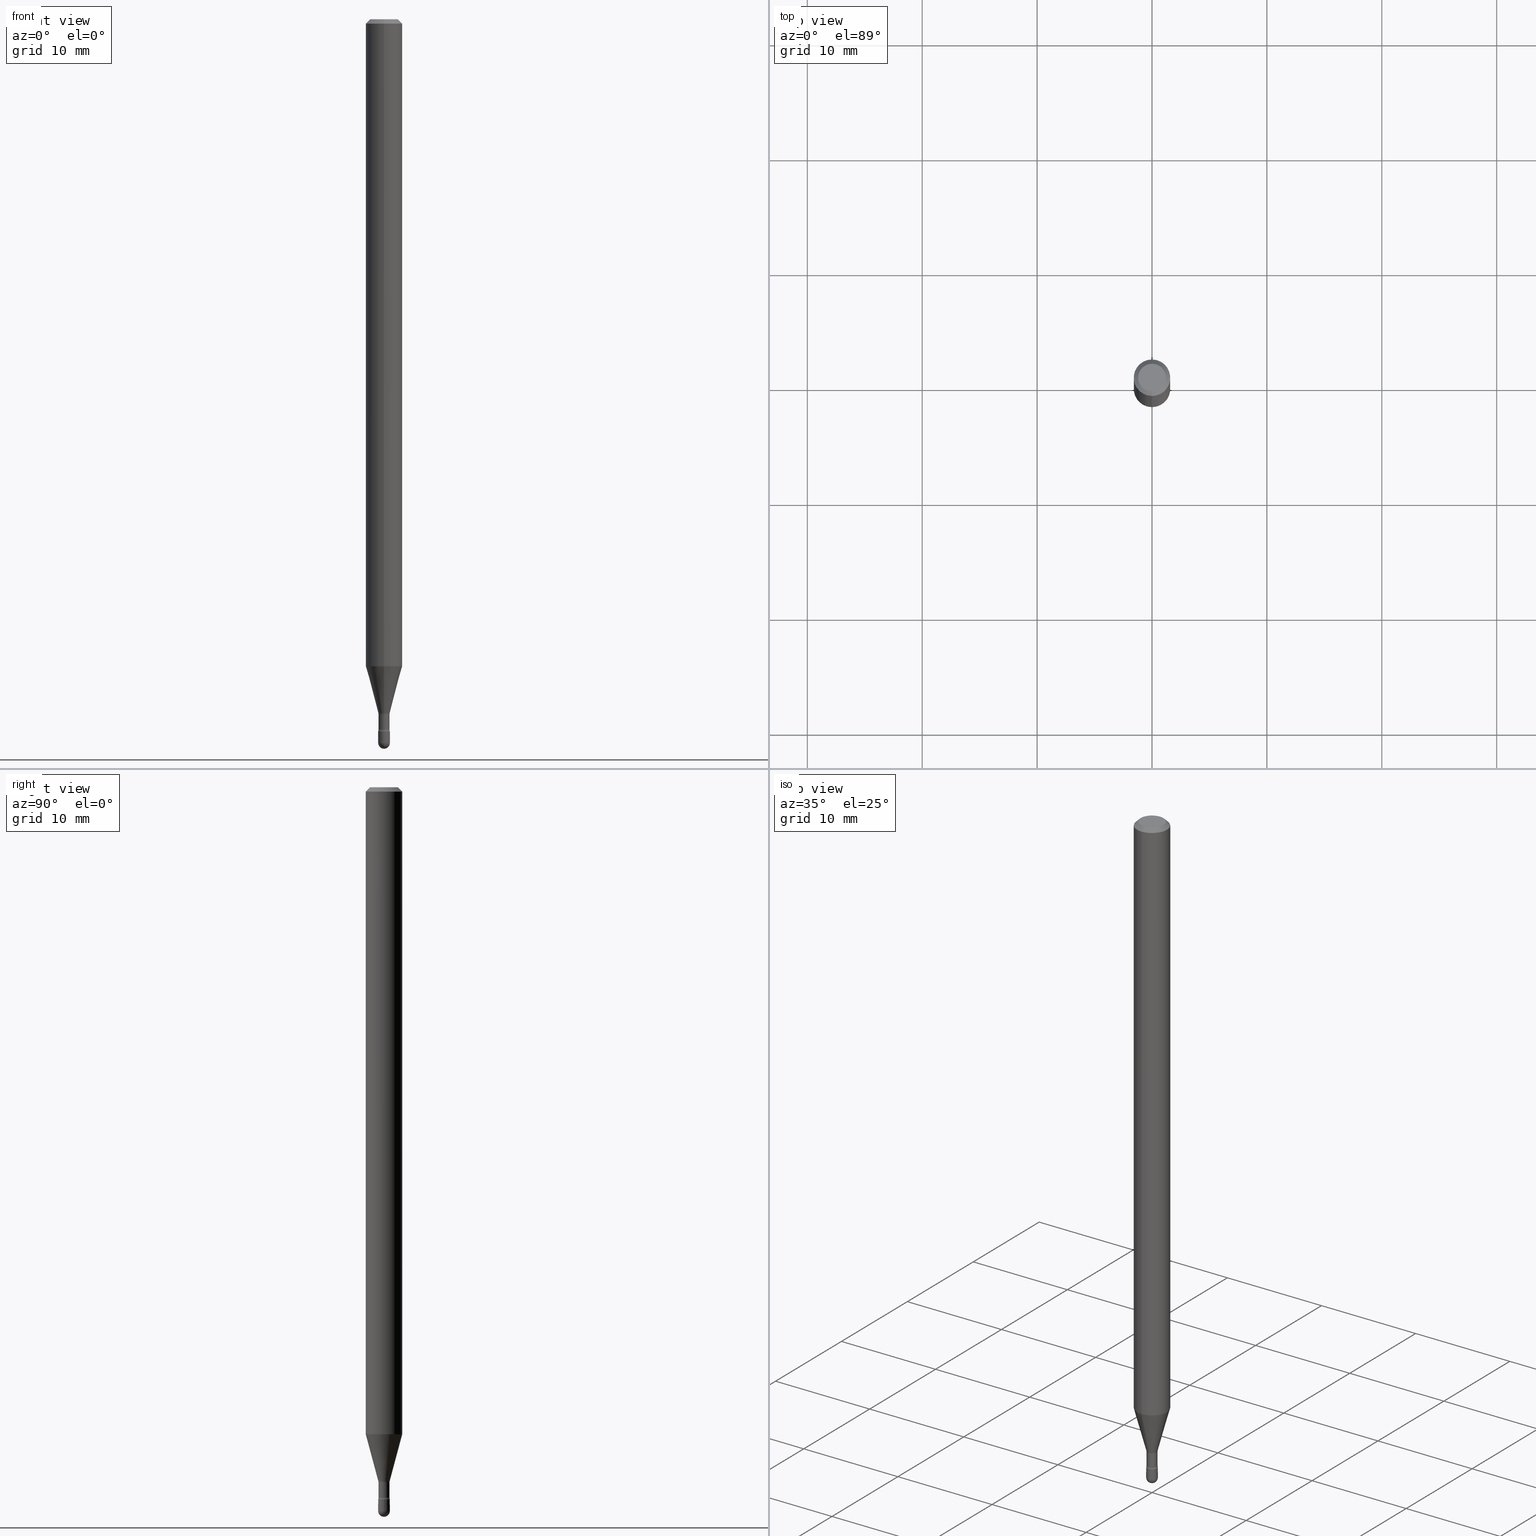
[diagram: canonical four-view strip — front | top / right | iso, engineering-drawing reading convention]
A machine part, canonical four-view strip (front | top / right | iso — engineering-drawing reading convention). The complete STEP part file that produces these views, byte-faithful:
ISO-10303-21;
HEADER;
FILE_DESCRIPTION (( 'STEP AP203' ),
    '1' );
FILE_NAME ('03812.STEP',
    '2024-04-09T20:34:02',
    ( '' ),
    ( '' ),
    'SwSTEP 2.0',
    'SolidWorks 2023',
    '' );
FILE_SCHEMA (( 'CONFIG_CONTROL_DESIGN' ));
ENDSEC;

DATA;
#1 = DIRECTION ( 'NONE',  ( 2.445423680447958706E-29, -3.491545961467181142E-15, -1.000000000000000000 ) ) ;
#2 = EDGE_CURVE ( 'NONE', #200, #380, #477, .T. ) ;
#3 = PRODUCT ( '03812', '03812', '', ( #102 ) ) ;
#4 = CARTESIAN_POINT ( 'NONE',  ( 6.064762639339139522E-29, -8.658873720331001644E-15, -2.480000000000000426 ) ) ;
#5 = CIRCLE ( 'NONE', #548, 0.04749999999999999362 ) ;
#6 = LOCAL_TIME ( 16, 34, 2.000000000000000000, #500 ) ;
#7 = CARTESIAN_POINT ( 'NONE',  ( -2.360241385057363024E-16, -0.03380000000000851074, -2.434121224617320500 ) ) ;
#8 = DIRECTION ( 'NONE',  ( -2.445468806185136597E-29, 3.491481338843145583E-15, 1.000000000000000000 ) ) ;
#9 = LINE ( 'NONE', #369, #323 ) ;
#10 = ORIENTED_EDGE ( 'NONE', *, *, #516, .T. ) ;
#11 = EDGE_CURVE ( 'NONE', #347, #132, #42, .T. ) ;
#12 = DIRECTION ( 'NONE',  ( 6.982962677686265133E-15, 1.000000000000000000, 0.000000000000000000 ) ) ;
#13 = ORIENTED_EDGE ( 'NONE', *, *, #395, .T. ) ;
#14 = AXIS2_PLACEMENT_3D ( 'NONE', #418, #373, #16 ) ;
#15 = AXIS2_PLACEMENT_3D ( 'NONE', #4, #56, #176 ) ;
#16 = DIRECTION ( 'NONE',  ( -6.982962677686265922E-15, -1.000000000000000000, 0.000000000000000000 ) ) ;
#17 = PERSON_AND_ORGANIZATION ( #273, #421 ) ;
#18 = FACE_OUTER_BOUND ( 'NONE', #566, .T. ) ;
#19 = DIRECTION ( 'NONE',  ( -6.982962677686265922E-15, -1.000000000000000000, 3.491545961467180748E-15 ) ) ;
#20 = DIRECTION ( 'NONE',  ( -6.982962677686265922E-15, -1.000000000000000000, 3.491545961467180748E-15 ) ) ;
#21 = PERSON_AND_ORGANIZATION ( #273, #421 ) ;
#22 = CARTESIAN_POINT ( 'NONE',  ( -1.169113584055446105E-44, 1.669184350826100908E-30, 4.780733988912460139E-16 ) ) ;
#23 = APPROVAL_ROLE ( '' ) ;
#24 = UNCERTAINTY_MEASURE_WITH_UNIT (LENGTH_MEASURE( 1.000000000000000082E-05 ), #179, 'distance_accuracy_value', 'NONE');
#25 = DIRECTION ( 'NONE',  ( -2.445423680447958986E-29, 3.491545961467181142E-15, 1.000000000000000000 ) ) ;
#26 = ORIENTED_EDGE ( 'NONE', *, *, #326, .F. ) ;
#27 = AXIS2_PLACEMENT_3D ( 'NONE', #549, #187, #423 ) ;
#28 = DIRECTION ( 'NONE',  ( 6.982962677686265922E-15, 1.000000000000000000, -3.483106191921935554E-15 ) ) ;
#29 = PERSON_AND_ORGANIZATION_ROLE ( 'classification_officer' ) ;
#30 = CC_DESIGN_APPROVAL ( #525, ( #88 ) ) ;
#31 = ORIENTED_EDGE ( 'NONE', *, *, #322, .F. ) ;
#32 = ORIENTED_EDGE ( 'NONE', *, *, #143, .T. ) ;
#33 = LINE ( 'NONE', #304, #147 ) ;
#34 = VERTEX_POINT ( 'NONE', #235 ) ;
#35 = ORIENTED_EDGE ( 'NONE', *, *, #446, .T. ) ;
#36 = CARTESIAN_POINT ( 'NONE',  ( 3.668135520671958886E-31, -5.237318942200801172E-17, -0.01500000000000008271 ) ) ;
#37 = ADVANCED_FACE ( 'NONE', ( #289 ), #422, .T. ) ;
#38 = VERTEX_POINT ( 'NONE', #464 ) ;
#39 = CARTESIAN_POINT ( 'NONE',  ( -4.287811248607203282E-16, -0.06250000000000005551, -0.01499999999999986587 ) ) ;
#40 = DIRECTION ( 'NONE',  ( 1.000000000000000000, -6.982962677686265922E-15, 4.883557194083112340E-29 ) ) ;
#41 = DIMENSIONAL_EXPONENTS ( 1.000000000000000000, 0.000000000000000000, 0.000000000000000000, 0.000000000000000000, 0.000000000000000000, 0.000000000000000000, 0.000000000000000000 ) ;
#42 = CIRCLE ( 'NONE', #52, 0.01931111260566397564 ) ;
#43 = AXIS2_PLACEMENT_3D ( 'NONE', #207, #174, #250 ) ;
#44 = ORIENTED_EDGE ( 'NONE', *, *, #541, .T. ) ;
#45 =( GEOMETRIC_REPRESENTATION_CONTEXT ( 3 ) GLOBAL_UNCERTAINTY_ASSIGNED_CONTEXT ( ( #24 ) ) GLOBAL_UNIT_ASSIGNED_CONTEXT ( ( #179, #314, #403 ) ) REPRESENTATION_CONTEXT ( 'NONE', 'WORKASPACE' ) );
#46 = DIRECTION ( 'NONE',  ( -7.105427357601000281E-15, -1.000000000000000000, 0.000000000000000000 ) ) ;
#47 = EDGE_CURVE ( 'NONE', #347, #432, #553, .T. ) ;
#48 = DIRECTION ( 'NONE',  ( -6.982962677686265922E-15, -1.000000000000000000, 0.000000000000000000 ) ) ;
#49 = ORIENTED_EDGE ( 'NONE', *, *, #357, .T. ) ;
#50 = PRODUCT_DEFINITION_SHAPE ( 'NONE', 'NONE',  #88 ) ;
#51 = EDGE_LOOP ( 'NONE', ( #31, #35, #122, #240 ) ) ;
#52 = AXIS2_PLACEMENT_3D ( 'NONE', #520, #135, #189 ) ;
#53 = PERSON_AND_ORGANIZATION_ROLE ( 'design_owner' ) ;
#54 = EDGE_CURVE ( 'NONE', #231, #34, #447, .T. ) ;
#55 = CARTESIAN_POINT ( 'NONE',  ( 0.000000000000000000, 0.000000000000000000, 0.000000000000000000 ) ) ;
#56 = DIRECTION ( 'NONE',  ( -2.445468806185136597E-29, 3.491481338843145583E-15, 1.000000000000000000 ) ) ;
#57 = CARTESIAN_POINT ( 'NONE',  ( 5.824937551493997987E-29, -8.316774449485916344E-15, -2.381974787463811083 ) ) ;
#58 = CONICAL_SURFACE ( 'NONE', #180, 0.06250000000000000000, 0.7853981633974483900 ) ;
#59 = AXIS2_PLACEMENT_3D ( 'NONE', #407, #96, #491 ) ;
#60 = AXIS2_PLACEMENT_3D ( 'NONE', #390, #428, #217 ) ;
#61 = CARTESIAN_POINT ( 'NONE',  ( 2.023224718894761242E-45, -2.889352424493738895E-31, -8.274396249690367506E-17 ) ) ;
#62 = ADVANCED_FACE ( 'NONE', ( #338 ), #114, .T. ) ;
#63 = CARTESIAN_POINT ( 'NONE',  ( 2.023224718894761242E-45, -2.889352424493738895E-31, -8.274396249690367506E-17 ) ) ;
#64 = FACE_OUTER_BOUND ( 'NONE', #430, .T. ) ;
#65 = VERTEX_POINT ( 'NONE', #544 ) ;
#66 = FACE_OUTER_BOUND ( 'NONE', #427, .T. ) ;
#67 = APPROVAL_STATUS ( 'not_yet_approved' ) ;
#68 = DIRECTION ( 'NONE',  ( -2.445423680447958986E-29, 3.491545961467181142E-15, 1.000000000000000000 ) ) ;
#69 = CIRCLE ( 'NONE', #225, 0.02000000000000000042 ) ;
#70 = CARTESIAN_POINT ( 'NONE',  ( 5.952567525274821981E-29, -8.498688832233398804E-15, -2.434121224617320500 ) ) ;
#71 = DIRECTION ( 'NONE',  ( 6.982962677686265922E-15, 1.000000000000000000, -3.483106191921935554E-15 ) ) ;
#72 = EDGE_LOOP ( 'NONE', ( #81, #128, #109, #243 ) ) ;
#73 = DIRECTION ( 'NONE',  ( -6.982962677686265922E-15, -1.000000000000000000, 3.491545961467181142E-15 ) ) ;
#74 = DATE_AND_TIME ( #507, #6 ) ;
#75 = DIRECTION ( 'NONE',  ( -1.807323732225327378E-15, -0.2588190451025177974, 0.9659258262890690894 ) ) ;
#76 = EDGE_CURVE ( 'NONE', #258, #252, #276, .T. ) ;
#77 = ORIENTED_EDGE ( 'NONE', *, *, #262, .F. ) ;
#78 = CARTESIAN_POINT ( 'NONE',  ( -1.348487785898901629E-16, -0.01931111260567227803, -2.378092501787273161 ) ) ;
#79 = DIRECTION ( 'NONE',  ( 1.000000000000000000, -6.982962677686265922E-15, 4.876176775795935793E-29 ) ) ;
#80 = ORIENTED_EDGE ( 'NONE', *, *, #76, .T. ) ;
#81 = ORIENTED_EDGE ( 'NONE', *, *, #233, .F. ) ;
#82 = AXIS2_PLACEMENT_3D ( 'NONE', #118, #484, #307 ) ;
#83 = CARTESIAN_POINT ( 'NONE',  ( 6.064762639339139522E-29, -8.658873720331001644E-15, -2.480000000000000426 ) ) ;
#84 = APPROVAL_PERSON_ORGANIZATION ( #333, #411, #23 ) ;
#85 = ORIENTED_EDGE ( 'NONE', *, *, #318, .T. ) ;
#86 = EDGE_CURVE ( 'NONE', #339, #301, #353, .T. ) ;
#87 = ORIENTED_EDGE ( 'NONE', *, *, #11, .T. ) ;
#88 = PRODUCT_DEFINITION ( 'UNKNOWN', '', #171, #275 ) ;
#89 = PLANE ( 'NONE',  #266 ) ;
#90 = ORIENTED_EDGE ( 'NONE', *, *, #11, .F. ) ;
#91 = DIRECTION ( 'NONE',  ( 1.000000000000000000, -7.105427357601001070E-15, 4.926316299940978661E-29 ) ) ;
#92 = ORIENTED_EDGE ( 'NONE', *, *, #76, .F. ) ;
#93 = LINE ( 'NONE', #384, #442 ) ;
#94 = AXIS2_PLACEMENT_3D ( 'NONE', #415, #108, #12 ) ;
#95 = CIRCLE ( 'NONE', #324, 0.02000000000000000042 ) ;
#96 = DIRECTION ( 'NONE',  ( -2.445468806185136597E-29, 3.491481338843145583E-15, 1.000000000000000000 ) ) ;
#97 = ORIENTED_EDGE ( 'NONE', *, *, #505, .F. ) ;
#98 = ADVANCED_FACE ( 'NONE', ( #330 ), #468, .T. ) ;
#99 = CIRCLE ( 'NONE', #236, 0.01879999999999999727 ) ;
#100 = CIRCLE ( 'NONE', #460, 0.01500000000000001506 ) ;
#101 = APPROVAL_ROLE ( '' ) ;
#102 = MECHANICAL_CONTEXT ( 'NONE', #254, 'mechanical' ) ;
#103 = DIRECTION ( 'NONE',  ( -6.982962677686265922E-15, -1.000000000000000000, 3.491545961467181142E-15 ) ) ;
#104 = EDGE_CURVE ( 'NONE', #432, #380, #9, .T. ) ;
#105 = VECTOR ( 'NONE', #425, 39.37007874015748143 ) ;
#106 = ORIENTED_EDGE ( 'NONE', *, *, #351, .T. ) ;
#107 = COORDINATED_UNIVERSAL_TIME_OFFSET ( 5, 0, .BEHIND. ) ;
#108 = DIRECTION ( 'NONE',  ( -1.000000000000000000, 6.982962677686265133E-15, -4.883557194083112340E-29 ) ) ;
#109 = ORIENTED_EDGE ( 'NONE', *, *, #481, .T. ) ;
#110 = DIRECTION ( 'NONE',  ( 1.000000000000000000, -7.105427357601001070E-15, 4.926316299940978661E-29 ) ) ;
#111 = CARTESIAN_POINT ( 'NONE',  ( -1.169113584055446105E-44, 1.669184350826100908E-30, 4.780733988912460139E-16 ) ) ;
#112 = CARTESIAN_POINT ( 'NONE',  ( -3.773273898774340269E-16, -0.04749999999999999362, 8.310447067278742425E-17 ) ) ;
#113 = PERSON_AND_ORGANIZATION_ROLE ( 'design_supplier' ) ;
#114 = SPHERICAL_SURFACE ( 'NONE', #94, 0.01999999999999989286 ) ;
#115 = AXIS2_PLACEMENT_3D ( 'NONE', #506, #306, #444 ) ;
#116 = CC_DESIGN_SECURITY_CLASSIFICATION ( #354, ( #171 ) ) ;
#117 = MANIFOLD_SOLID_BREP ( 'Body-Move/Copy2[1]', #283 ) ;
#118 = CARTESIAN_POINT ( 'NONE',  ( 6.064762639339139522E-29, -8.658873720331001644E-15, -2.480000000000000426 ) ) ;
#119 = CARTESIAN_POINT ( 'NONE',  ( 6.064762639339139522E-29, -8.658873720331001644E-15, -2.480000000000000426 ) ) ;
#120 = APPROVAL_DATE_TIME ( #188, #411 ) ;
#121 = CARTESIAN_POINT ( 'NONE',  ( 2.906514588320867785E-16, 0.01931111260565567325, -2.378092501787273161 ) ) ;
#122 = ORIENTED_EDGE ( 'NONE', *, *, #104, .T. ) ;
#123 = VERTEX_POINT ( 'NONE', #540 ) ;
#124 = CARTESIAN_POINT ( 'NONE',  ( 1.372137078140565094E-16, 0.01931111260565567325, -2.378092501787273161 ) ) ;
#125 = DIRECTION ( 'NONE',  ( -6.982962677686265133E-15, -1.000000000000000000, 0.000000000000000000 ) ) ;
#126 = ORIENTED_EDGE ( 'NONE', *, *, #498, .F. ) ;
#127 = ADVANCED_FACE ( 'NONE', ( #18 ), #201, .T. ) ;
#128 = ORIENTED_EDGE ( 'NONE', *, *, #2, .T. ) ;
#129 = AXIS2_PLACEMENT_3D ( 'NONE', #497, #334, #79 ) ;
#130 = CARTESIAN_POINT ( 'NONE',  ( -0.02000000000000000042, -8.446935546402118183E-15, -2.440000000000000391 ) ) ;
#131 = CIRCLE ( 'NONE', #203, 0.06250000000000000000 ) ;
#132 = VERTEX_POINT ( 'NONE', #121 ) ;
#133 = ORIENTED_EDGE ( 'NONE', *, *, #47, .T. ) ;
#134 = DIRECTION ( 'NONE',  ( -2.445423680447958986E-29, 3.491545961467181142E-15, 1.000000000000000000 ) ) ;
#135 = DIRECTION ( 'NONE',  ( -2.445423680447958986E-29, 3.491545961467181142E-15, 1.000000000000000000 ) ) ;
#136 = CARTESIAN_POINT ( 'NONE',  ( 1.421085471520797224E-16, 0.01999999999999148292, -2.440000000000000391 ) ) ;
#137 = VERTEX_POINT ( 'NONE', #535 ) ;
#138 = CYLINDRICAL_SURFACE ( 'NONE', #409, 0.02000000000000000042 ) ;
#139 = AXIS2_PLACEMENT_3D ( 'NONE', #22, #499, #452 ) ;
#140 = EDGE_LOOP ( 'NONE', ( #295, #388 ) ) ;
#141 = ADVANCED_FACE ( 'NONE', ( #64 ), #193, .T. ) ;
#142 = AXIS2_PLACEMENT_3D ( 'NONE', #387, #434, #480 ) ;
#143 = EDGE_CURVE ( 'NONE', #383, #380, #450, .T. ) ;
#144 = DIRECTION ( 'NONE',  ( -2.445423680447958986E-29, 3.491545961467181142E-15, 1.000000000000000000 ) ) ;
#145 = CARTESIAN_POINT ( 'NONE',  ( 5.966833780293020319E-29, -8.519372145979922854E-15, -2.440000000000000391 ) ) ;
#146 = AXIS2_PLACEMENT_3D ( 'NONE', #234, #493, #195 ) ;
#147 = VECTOR ( 'NONE', #245, 39.37007874015748143 ) ;
#148 = DIRECTION ( 'NONE',  ( -2.445423680447958986E-29, 3.491545961467181142E-15, 1.000000000000000000 ) ) ;
#149 = CYLINDRICAL_SURFACE ( 'NONE', #175, 0.01880000000000000074 ) ;
#150 = CARTESIAN_POINT ( 'NONE',  ( 3.668135520671958886E-31, -5.237318942200801172E-17, -0.01500000000000008271 ) ) ;
#151 = ADVANCED_FACE ( 'NONE', ( #239 ), #58, .T. ) ;
#152 = APPROVAL_DATE_TIME ( #74, #433 ) ;
#153 = CARTESIAN_POINT ( 'NONE',  ( 0.02000000000000000042, -1.396592535537253145E-16, 9.752353551591871936E-31 ) ) ;
#154 = ORIENTED_EDGE ( 'NONE', *, *, #322, .T. ) ;
#155 = AXIS2_PLACEMENT_3D ( 'NONE', #61, #148, #329 ) ;
#156 = CIRCLE ( 'NONE', #317, 0.01500000000000003240 ) ;
#157 = CARTESIAN_POINT ( 'NONE',  ( 5.966943887091733341E-29, -8.519214466777275048E-15, -2.440000000000000391 ) ) ;
#158 = DIRECTION ( 'NONE',  ( -2.445423680447958986E-29, 3.491545961467181142E-15, 1.000000000000000000 ) ) ;
#159 = ORIENTED_EDGE ( 'NONE', *, *, #318, .F. ) ;
#160 = ORIENTED_EDGE ( 'NONE', *, *, #253, .F. ) ;
#161 = ADVANCED_FACE ( 'NONE', ( #461 ), #149, .T. ) ;
#162 = CARTESIAN_POINT ( 'NONE',  ( 2.401634446869721166E-16, 0.03379999999999169086, -2.381974787463811083 ) ) ;
#163 = ADVANCED_FACE ( 'NONE', ( #196 ), #504, .T. ) ;
#164 = ORIENTED_EDGE ( 'NONE', *, *, #2, .F. ) ;
#165 = ORIENTED_EDGE ( 'NONE', *, *, #104, .F. ) ;
#166 = CARTESIAN_POINT ( 'NONE',  ( -4.364351673553912750E-16, -0.06250000000000005551, -0.01499999999999986587 ) ) ;
#167 = ORIENTED_EDGE ( 'NONE', *, *, #253, .T. ) ;
#168 = ORIENTED_EDGE ( 'NONE', *, *, #417, .F. ) ;
#169 = AXIS2_PLACEMENT_3D ( 'NONE', #145, #378, #246 ) ;
#170 = FACE_OUTER_BOUND ( 'NONE', #72, .T. ) ;
#171 = PRODUCT_DEFINITION_FORMATION_WITH_SPECIFIED_SOURCE ( 'ANY', '', #3, .NOT_KNOWN. ) ;
#172 = ORIENTED_EDGE ( 'NONE', *, *, #210, .F. ) ;
#173 = DIRECTION ( 'NONE',  ( -2.445423680447958706E-29, 3.491545961467181142E-15, 1.000000000000000000 ) ) ;
#174 = DIRECTION ( 'NONE',  ( -2.445468806185136597E-29, 3.491481338843145583E-15, 1.000000000000000000 ) ) ;
#175 = AXIS2_PLACEMENT_3D ( 'NONE', #111, #372, #282 ) ;
#176 = DIRECTION ( 'NONE',  ( 1.000000000000000000, -6.982962677686235945E-15, 0.000000000000000000 ) ) ;
#177 = EDGE_CURVE ( 'NONE', #347, #34, #379, .T. ) ;
#178 = ADVANCED_FACE ( 'NONE', ( #437 ), #522, .F. ) ;
#179 =( CONVERSION_BASED_UNIT ( 'INCH', #401 ) LENGTH_UNIT ( ) NAMED_UNIT ( #41 ) );
#180 = AXIS2_PLACEMENT_3D ( 'NONE', #230, #501, #71 ) ;
#181 = LOCAL_TIME ( 16, 34, 2.000000000000000000, #359 ) ;
#182 = ADVANCED_FACE ( 'NONE', ( #356 ), #451, .T. ) ;
#183 = ORIENTED_EDGE ( 'NONE', *, *, #375, .T. ) ;
#184 = CARTESIAN_POINT ( 'NONE',  ( -0.02000000000000000042, 1.421085471520200401E-16, -9.837870180509812545E-31 ) ) ;
#185 = DIRECTION ( 'NONE',  ( -6.982962677686265922E-15, -1.000000000000000000, 0.000000000000000000 ) ) ;
#186 = EDGE_CURVE ( 'NONE', #249, #137, #271, .T. ) ;
#187 = DIRECTION ( 'NONE',  ( -2.445423680447958986E-29, 3.491545961467181142E-15, 1.000000000000000000 ) ) ;
#188 = DATE_AND_TIME ( #281, #310 ) ;
#189 = DIRECTION ( 'NONE',  ( -6.982962677686265922E-15, -1.000000000000000000, 0.000000000000000000 ) ) ;
#190 = AXIS2_PLACEMENT_3D ( 'NONE', #199, #158, #185 ) ;
#191 = CC_DESIGN_APPROVAL ( #433, ( #171 ) ) ;
#192 = SECURITY_CLASSIFICATION_LEVEL ( 'unclassified' ) ;
#193 = PLANE ( 'NONE',  #259 ) ;
#194 = CC_DESIGN_PERSON_AND_ORGANIZATION_ASSIGNMENT ( #429, #113, ( #171 ) ) ;
#195 = DIRECTION ( 'NONE',  ( -6.982962677686265922E-15, -1.000000000000000000, 0.000000000000000000 ) ) ;
#196 = FACE_OUTER_BOUND ( 'NONE', #385, .T. ) ;
#197 = CARTESIAN_POINT ( 'NONE',  ( 0.02000000000000000042, -8.728703347107863365E-15, -2.480000000000000426 ) ) ;
#198 = PERSON_AND_ORGANIZATION ( #273, #421 ) ;
#199 = CARTESIAN_POINT ( 'NONE',  ( 5.815443718166328514E-29, -8.303219270610738665E-15, -2.378092501787273161 ) ) ;
#200 = VERTEX_POINT ( 'NONE', #112 ) ;
#201 = CONICAL_SURFACE ( 'NONE', #190, 0.01931111260566397564, 0.2617993877991498519 ) ;
#202 = EDGE_LOOP ( 'NONE', ( #49, #154, #512, #165 ) ) ;
#203 = AXIS2_PLACEMENT_3D ( 'NONE', #36, #209, #563 ) ;
#204 = CC_DESIGN_PERSON_AND_ORGANIZATION_ASSIGNMENT ( #264, #53, ( #3 ) ) ;
#205 = DIRECTION ( 'NONE',  ( -2.445468806185136597E-29, 3.491481338843145583E-15, 1.000000000000000000 ) ) ;
#206 = EDGE_LOOP ( 'NONE', ( #413, #294 ) ) ;
#207 = CARTESIAN_POINT ( 'NONE',  ( 6.064762639339139522E-29, -8.658873720331001644E-15, -2.480000000000000426 ) ) ;
#208 = ORIENTED_EDGE ( 'NONE', *, *, #287, .T. ) ;
#209 = DIRECTION ( 'NONE',  ( -2.445423680447958986E-29, 3.491545961467181142E-15, 1.000000000000000000 ) ) ;
#210 = EDGE_CURVE ( 'NONE', #391, #200, #361, .T. ) ;
#211 = ORIENTED_EDGE ( 'NONE', *, *, #532, .T. ) ;
#212 = ORIENTED_EDGE ( 'NONE', *, *, #86, .T. ) ;
#213 = AXIS2_PLACEMENT_3D ( 'NONE', #319, #487, #103 ) ;
#214 = DIRECTION ( 'NONE',  ( 1.000000000000000000, -6.982962677686235945E-15, 0.000000000000000000 ) ) ;
#215 = VECTOR ( 'NONE', #220, 39.37007874015748143 ) ;
#216 = CC_DESIGN_PERSON_AND_ORGANIZATION_ASSIGNMENT ( #21, #374, ( #88 ) ) ;
#217 = DIRECTION ( 'NONE',  ( -6.982962677686265922E-15, -1.000000000000000000, 4.370956789862821150E-15 ) ) ;
#218 = CARTESIAN_POINT ( 'NONE',  ( 0.000000000000000000, 0.000000000000000000, 0.000000000000000000 ) ) ;
#219 = PRODUCT_RELATED_PRODUCT_CATEGORY ( 'detail', '', ( #3 ) ) ;
#220 = DIRECTION ( 'NONE',  ( 4.937700262164548042E-15, 0.7071067811865451302, -0.7071067811865499042 ) ) ;
#221 = CIRCLE ( 'NONE', #537, 0.02000000000000000042 ) ;
#222 = CIRCLE ( 'NONE', #59, 0.02000000000000000042 ) ;
#223 = DIRECTION ( 'NONE',  ( -1.000000000000000000, 6.982962677686265922E-15, -4.883557194083112340E-29 ) ) ;
#224 = ADVANCED_FACE ( 'NONE', ( #545 ), #297, .F. ) ;
#225 = AXIS2_PLACEMENT_3D ( 'NONE', #157, #8, #414 ) ;
#226 = CONICAL_SURFACE ( 'NONE', #382, 0.06250000000000000000, 0.7853981633974483900 ) ;
#227 = FACE_OUTER_BOUND ( 'NONE', #469, .T. ) ;
#228 = ORIENTED_EDGE ( 'NONE', *, *, #454, .F. ) ;
#229 = DIRECTION ( 'NONE',  ( -2.445423680447958986E-29, 3.491545961467181142E-15, 1.000000000000000000 ) ) ;
#230 = CARTESIAN_POINT ( 'NONE',  ( 3.668135520671958886E-31, -5.237318942200801172E-17, -0.01500000000000008271 ) ) ;
#231 = VERTEX_POINT ( 'NONE', #327 ) ;
#232 = ADVANCED_FACE ( 'NONE', ( #227 ), #408, .F. ) ;
#233 = EDGE_CURVE ( 'NONE', #200, #391, #5, .T. ) ;
#234 = CARTESIAN_POINT ( 'NONE',  ( 5.815443718166328514E-29, -8.303219270610738665E-15, -2.378092501787273161 ) ) ;
#235 = CARTESIAN_POINT ( 'NONE',  ( -1.312796983404435737E-16, -0.01880000000000832047, -2.381974787463811083 ) ) ;
#236 = AXIS2_PLACEMENT_3D ( 'NONE', #270, #542, #274 ) ;
#237 = APPROVAL_PERSON_ORGANIZATION ( #198, #433, #377 ) ;
#238 = DIRECTION ( 'NONE',  ( -2.445468806185136877E-29, 3.491481338843145188E-15, 1.000000000000000000 ) ) ;
#239 = FACE_OUTER_BOUND ( 'NONE', #342, .T. ) ;
#240 = ORIENTED_EDGE ( 'NONE', *, *, #143, .F. ) ;
#241 = LINE ( 'NONE', #376, #473 ) ;
#242 = DATE_AND_TIME ( #337, #336 ) ;
#243 = ORIENTED_EDGE ( 'NONE', *, *, #539, .F. ) ;
#244 = ORIENTED_EDGE ( 'NONE', *, *, #357, .F. ) ;
#245 = DIRECTION ( 'NONE',  ( -2.445423680447958986E-29, 3.491545961467181142E-15, 1.000000000000000000 ) ) ;
#246 = DIRECTION ( 'NONE',  ( -6.982962677686265922E-15, -1.000000000000000000, 0.000000000000000000 ) ) ;
#247 = ORIENTED_EDGE ( 'NONE', *, *, #524, .F. ) ;
#248 = VECTOR ( 'NONE', #238, 39.37007874015748143 ) ;
#249 = VERTEX_POINT ( 'NONE', #288 ) ;
#250 = DIRECTION ( 'NONE',  ( 1.000000000000000000, -6.982962677686235945E-15, 0.000000000000000000 ) ) ;
#251 = ORIENTED_EDGE ( 'NONE', *, *, #446, .F. ) ;
#252 = VERTEX_POINT ( 'NONE', #463 ) ;
#253 = EDGE_CURVE ( 'NONE', #252, #426, #69, .T. ) ;
#254 = APPLICATION_CONTEXT ( 'configuration controlled 3d designs of mechanical parts and assemblies' ) ;
#255 = DIRECTION ( 'NONE',  ( 6.982962677686265922E-15, 1.000000000000000000, -3.491545961467181142E-15 ) ) ;
#256 = ORIENTED_EDGE ( 'NONE', *, *, #498, .T. ) ;
#257 = CARTESIAN_POINT ( 'NONE',  ( 5.815443718166328514E-29, -8.303219270610738665E-15, -2.378092501787273161 ) ) ;
#258 = VERTEX_POINT ( 'NONE', #197 ) ;
#259 = AXIS2_PLACEMENT_3D ( 'NONE', #325, #495, #457 ) ;
#260 = CARTESIAN_POINT ( 'NONE',  ( 3.316907271900976096E-16, 0.04749999999999999362, 3.181628502748008861E-17 ) ) ;
#261 = VECTOR ( 'NONE', #296, 39.37007874015748854 ) ;
#262 = EDGE_CURVE ( 'NONE', #137, #249, #99, .T. ) ;
#263 = ORIENTED_EDGE ( 'NONE', *, *, #541, .F. ) ;
#264 = PERSON_AND_ORGANIZATION ( #273, #421 ) ;
#265 = AXIS2_PLACEMENT_3D ( 'NONE', #293, #25, #20 ) ;
#266 = AXIS2_PLACEMENT_3D ( 'NONE', #260, #1, #255 ) ;
#267 = CARTESIAN_POINT ( 'NONE',  ( 4.364351673553919652E-16, 0.06249999999999995143, -0.01500000000000030129 ) ) ;
#268 = DIRECTION ( 'NONE',  ( -2.445423680447958986E-29, 3.491545961467181142E-15, 1.000000000000000000 ) ) ;
#269 = ADVANCED_FACE ( 'NONE', ( #496 ), #308, .F. ) ;
#270 = CARTESIAN_POINT ( 'NONE',  ( 5.952457683760182309E-29, -8.498846131534155732E-15, -2.434121224617320944 ) ) ;
#271 = CIRCLE ( 'NONE', #14, 0.01879999999999999727 ) ;
#272 = CONICAL_SURFACE ( 'NONE', #400, 0.01931111260566397564, 0.2617993877991498519 ) ;
#273 = PERSON ( 'UNSPECIFIED', 'UNSPECIFIED', 'UNSPECIFIED', ('UNSPECIFIED'), ('UNSPECIFIED'), ('UNSPECIFIED') ) ;
#274 = DIRECTION ( 'NONE',  ( -6.982962677686265922E-15, -1.000000000000000000, 0.000000000000000000 ) ) ;
#275 = DESIGN_CONTEXT ( 'detailed design', #518, 'design' ) ;
#276 = LINE ( 'NONE', #153, #105 ) ;
#277 = ORIENTED_EDGE ( 'NONE', *, *, #346, .T. ) ;
#278 = CC_DESIGN_PERSON_AND_ORGANIZATION_ASSIGNMENT ( #17, #29, ( #354 ) ) ;
#279 = DIRECTION ( 'NONE',  ( -2.445423680447958986E-29, 3.491545961467181142E-15, 1.000000000000000000 ) ) ;
#280 = CARTESIAN_POINT ( 'NONE',  ( 5.825045039862220002E-29, -8.316620520024762877E-15, -2.381974787463811083 ) ) ;
#281 = CALENDAR_DATE ( 2024, 9, 4 ) ;
#282 = DIRECTION ( 'NONE',  ( -6.982962677686265922E-15, -1.000000000000000000, 3.491545961467180748E-15 ) ) ;
#283 = CLOSED_SHELL ( 'NONE', ( #547, #62, #141, #163, #98 ) ) ;
#284 = AXIS2_PLACEMENT_3D ( 'NONE', #280, #370, #502 ) ;
#285 = APPROVAL_DATE_TIME ( #320, #525 ) ;
#286 = CIRCLE ( 'NONE', #489, 0.01999999999999989286 ) ;
#287 = EDGE_CURVE ( 'NONE', #249, #339, #483, .T. ) ;
#288 = CARTESIAN_POINT ( 'NONE',  ( 1.378452907375190238E-16, 0.01879999999999150059, -2.434121224617320944 ) ) ;
#289 = FACE_OUTER_BOUND ( 'NONE', #51, .T. ) ;
#290 = ORIENTED_EDGE ( 'NONE', *, *, #326, .T. ) ;
#291 = LINE ( 'NONE', #124, #261 ) ;
#292 = SHAPE_DEFINITION_REPRESENTATION ( #50, #472 ) ;
#293 = CARTESIAN_POINT ( 'NONE',  ( -1.169113584055446105E-44, 1.669184350826100908E-30, 4.780733988912460139E-16 ) ) ;
#294 = ORIENTED_EDGE ( 'NONE', *, *, #233, .T. ) ;
#295 = ORIENTED_EDGE ( 'NONE', *, *, #532, .F. ) ;
#296 = DIRECTION ( 'NONE',  ( 1.839019923739597160E-15, 0.2588190451025245142, 0.9659258262890670910 ) ) ;
#297 = TOROIDAL_SURFACE ( 'NONE', #27, 0.03380000000000000365, 0.01500000000000003067 ) ;
#298 = EDGE_LOOP ( 'NONE', ( #514, #290, #106, #80, #97 ) ) ;
#299 = APPROVAL_PERSON_ORGANIZATION ( #405, #525, #101 ) ;
#300 = DIRECTION ( 'NONE',  ( -2.445423680447958986E-29, 3.491545961467181142E-15, 1.000000000000000000 ) ) ;
#301 = VERTEX_POINT ( 'NONE', #455 ) ;
#302 = VERTEX_POINT ( 'NONE', #321 ) ;
#303 = CC_DESIGN_PERSON_AND_ORGANIZATION_ASSIGNMENT ( #534, #419, ( #171 ) ) ;
#304 = CARTESIAN_POINT ( 'NONE',  ( -1.312796983405018015E-16, -0.01880000000000000074, 5.437144629668290486E-16 ) ) ;
#305 = EDGE_LOOP ( 'NONE', ( #438, #208, #212, #247 ) ) ;
#306 = DIRECTION ( 'NONE',  ( -2.445423680447958986E-29, 3.491545961467181142E-15, 1.000000000000000000 ) ) ;
#307 = DIRECTION ( 'NONE',  ( 6.982962677686265133E-15, 1.000000000000000000, 0.000000000000000000 ) ) ;
#308 = TOROIDAL_SURFACE ( 'NONE', #420, 0.03380000000000001059, 0.01500000000000001159 ) ;
#309 = AXIS2_PLACEMENT_3D ( 'NONE', #546, #558, #125 ) ;
#310 = LOCAL_TIME ( 16, 34, 2.000000000000000000, #107 ) ;
#311 = EDGE_CURVE ( 'NONE', #123, #426, #412, .T. ) ;
#312 = ADVANCED_FACE ( 'NONE', ( #66 ), #364, .T. ) ;
#313 = DIRECTION ( 'NONE',  ( 1.000000000000000000, 0.000000000000000000, 0.000000000000000000 ) ) ;
#314 =( NAMED_UNIT ( * ) PLANE_ANGLE_UNIT ( ) SI_UNIT ( $, .RADIAN. ) );
#315 = MANIFOLD_SOLID_BREP ( 'Body-Move/Copy2[2]', #528 ) ;
#316 = CIRCLE ( 'NONE', #142, 0.02000000000000000042 ) ;
#317 = AXIS2_PLACEMENT_3D ( 'NONE', #162, #91, #510 ) ;
#318 = EDGE_CURVE ( 'NONE', #132, #347, #399, .T. ) ;
#319 = CARTESIAN_POINT ( 'NONE',  ( 5.952567525274821981E-29, -8.498688832233398804E-15, -2.434121224617320500 ) ) ;
#320 = DATE_AND_TIME ( #331, #181 ) ;
#321 = CARTESIAN_POINT ( 'NONE',  ( -1.421085471519589527E-16, -0.02000000000000860464, -2.480000000000000426 ) ) ;
#322 = EDGE_CURVE ( 'NONE', #397, #383, #241, .T. ) ;
#323 = VECTOR ( 'NONE', #279, 39.37007874015748143 ) ;
#324 = AXIS2_PLACEMENT_3D ( 'NONE', #485, #360, #48 ) ;
#325 = CARTESIAN_POINT ( 'NONE',  ( 5.966943887091733341E-29, -8.519214466777275048E-15, -2.440000000000000391 ) ) ;
#326 = EDGE_CURVE ( 'NONE', #123, #302, #221, .T. ) ;
#327 = CARTESIAN_POINT ( 'NONE',  ( 1.335820343229583499E-16, 0.01879999999999168447, -2.381974787463811083 ) ) ;
#328 = CARTESIAN_POINT ( 'NONE',  ( -1.348487785898901629E-16, -0.01931111260567227803, -2.378092501787273161 ) ) ;
#329 = DIRECTION ( 'NONE',  ( -6.982962677686266711E-15, -1.000000000000000000, 3.491545961467181536E-15 ) ) ;
#330 = FACE_OUTER_BOUND ( 'NONE', #298, .T. ) ;
#331 = CALENDAR_DATE ( 2024, 9, 4 ) ;
#332 = DIRECTION ( 'NONE',  ( -6.982962677686266711E-15, -1.000000000000000000, 3.491545961467181536E-15 ) ) ;
#333 = PERSON_AND_ORGANIZATION ( #273, #421 ) ;
#334 = DIRECTION ( 'NONE',  ( -2.445468806185136597E-29, 3.491481338843145583E-15, 1.000000000000000000 ) ) ;
#335 = CALENDAR_DATE ( 2024, 9, 4 ) ;
#336 = LOCAL_TIME ( 16, 34, 2.000000000000000000, #371 ) ;
#337 = CALENDAR_DATE ( 2024, 9, 4 ) ;
#338 = FACE_OUTER_BOUND ( 'NONE', #393, .T. ) ;
#339 = VERTEX_POINT ( 'NONE', #136 ) ;
#340 = ORIENTED_EDGE ( 'NONE', *, *, #375, .F. ) ;
#341 = PLANE ( 'NONE',  #503 ) ;
#342 = EDGE_LOOP ( 'NONE', ( #164, #172, #556, #32 ) ) ;
#343 = EDGE_LOOP ( 'NONE', ( #126, #90, #439, #44 ) ) ;
#344 = CARTESIAN_POINT ( 'NONE',  ( 4.440892098501171462E-16, 0.06249999999999995143, -0.01500000000000030129 ) ) ;
#345 = ORIENTED_EDGE ( 'NONE', *, *, #395, .F. ) ;
#346 = EDGE_CURVE ( 'NONE', #65, #123, #564, .T. ) ;
#347 = VERTEX_POINT ( 'NONE', #78 ) ;
#348 = CARTESIAN_POINT ( 'NONE',  ( 3.668135520671958886E-31, -5.237318942200801172E-17, -0.01500000000000008271 ) ) ;
#349 = DIRECTION ( 'NONE',  ( -4.851104656540964275E-15, -0.7071067811865500152, -0.7071067811865450192 ) ) ;
#350 = DIRECTION ( 'NONE',  ( -2.445423680447958986E-29, 3.491545961467181142E-15, 1.000000000000000000 ) ) ;
#351 = EDGE_CURVE ( 'NONE', #302, #258, #316, .T. ) ;
#352 = FACE_OUTER_BOUND ( 'NONE', #466, .T. ) ;
#353 = CIRCLE ( 'NONE', #169, 0.02000000000000000042 ) ;
#354 = SECURITY_CLASSIFICATION ( '', '', #192 ) ;
#355 = DIRECTION ( 'NONE',  ( 1.000000000000000000, -6.982962677686265922E-15, 4.876176775795935793E-29 ) ) ;
#356 = FACE_OUTER_BOUND ( 'NONE', #202, .T. ) ;
#357 = EDGE_CURVE ( 'NONE', #432, #397, #529, .T. ) ;
#358 = ORIENTED_EDGE ( 'NONE', *, *, #311, .T. ) ;
#359 = COORDINATED_UNIVERSAL_TIME_OFFSET ( 5, 0, .BEHIND. ) ;
#360 = DIRECTION ( 'NONE',  ( -2.445423680447958986E-29, 3.491545961467181142E-15, 1.000000000000000000 ) ) ;
#361 = CIRCLE ( 'NONE', #155, 0.04749999999999999362 ) ;
#362 = CC_DESIGN_APPROVAL ( #411, ( #354 ) ) ;
#363 = CC_DESIGN_DATE_AND_TIME_ASSIGNMENT ( #242, #550, ( #354 ) ) ;
#364 = CYLINDRICAL_SURFACE ( 'NONE', #488, 0.01880000000000000074 ) ;
#365 = CARTESIAN_POINT ( 'NONE',  ( 5.824937551493997987E-29, -8.316774449485916344E-15, -2.381974787463811083 ) ) ;
#366 = ORIENTED_EDGE ( 'NONE', *, *, #177, .F. ) ;
#367 = DIRECTION ( 'NONE',  ( -2.445423680447958986E-29, 3.491545961467181142E-15, 1.000000000000000000 ) ) ;
#368 = CIRCLE ( 'NONE', #60, 0.06250000000000000000 ) ;
#369 = CARTESIAN_POINT ( 'NONE',  ( -4.364351673553916201E-16, -0.06250000000000000000, 6.962950214829448106E-16 ) ) ;
#370 = DIRECTION ( 'NONE',  ( -2.445423680447958986E-29, 3.491545961467181142E-15, 1.000000000000000000 ) ) ;
#371 = COORDINATED_UNIVERSAL_TIME_OFFSET ( 5, 0, .BEHIND. ) ;
#372 = DIRECTION ( 'NONE',  ( -2.445423680447958986E-29, 3.491545961467181142E-15, 1.000000000000000000 ) ) ;
#373 = DIRECTION ( 'NONE',  ( -2.445423680447958986E-29, 3.491545961467181142E-15, 1.000000000000000000 ) ) ;
#374 = PERSON_AND_ORGANIZATION_ROLE ( 'creator' ) ;
#375 = EDGE_CURVE ( 'NONE', #249, #231, #93, .T. ) ;
#376 = CARTESIAN_POINT ( 'NONE',  ( 4.440892098500625669E-16, 0.06250000000000000000, 2.598517762995472172E-16 ) ) ;
#377 = APPROVAL_ROLE ( '' ) ;
#378 = DIRECTION ( 'NONE',  ( -2.445423680447958986E-29, 3.491545961467181142E-15, 1.000000000000000000 ) ) ;
#379 = CIRCLE ( 'NONE', #309, 0.01500000000000003240 ) ;
#380 = VERTEX_POINT ( 'NONE', #166 ) ;
#381 = AXIS2_PLACEMENT_3D ( 'NONE', #57, #268, #406 ) ;
#382 = AXIS2_PLACEMENT_3D ( 'NONE', #348, #519, #28 ) ;
#383 = VERTEX_POINT ( 'NONE', #344 ) ;
#384 = CARTESIAN_POINT ( 'NONE',  ( 1.335820343228988155E-16, 0.01880000000000000074, 4.124323348156630779E-16 ) ) ;
#385 = EDGE_LOOP ( 'NONE', ( #389, #511, #536, #562 ) ) ;
#386 = ADVANCED_FACE ( 'NONE', ( #560 ), #341, .F. ) ;
#387 = CARTESIAN_POINT ( 'NONE',  ( 6.064762639339139522E-29, -8.658873720331001644E-15, -2.480000000000000426 ) ) ;
#388 = ORIENTED_EDGE ( 'NONE', *, *, #86, .F. ) ;
#389 = ORIENTED_EDGE ( 'NONE', *, *, #410, .F. ) ;
#390 = CARTESIAN_POINT ( 'NONE',  ( 5.421282694548172872E-29, -7.740440991662511567E-15, -2.216909379709240291 ) ) ;
#391 = VERTEX_POINT ( 'NONE', #440 ) ;
#392 = AXIS2_PLACEMENT_3D ( 'NONE', #365, #508, #424 ) ;
#393 = EDGE_LOOP ( 'NONE', ( #228, #509, #26, #559 ) ) ;
#394 = DIRECTION ( 'NONE',  ( -6.982962677686265922E-15, -1.000000000000000000, 3.491545961467181142E-15 ) ) ;
#395 = EDGE_CURVE ( 'NONE', #137, #34, #33, .T. ) ;
#396 = DIRECTION ( 'NONE',  ( 6.982962677686265922E-15, 1.000000000000000000, 0.000000000000000000 ) ) ;
#397 = VERTEX_POINT ( 'NONE', #513 ) ;
#398 = DIRECTION ( 'NONE',  ( 0.000000000000000000, 0.000000000000000000, 1.000000000000000000 ) ) ;
#399 = CIRCLE ( 'NONE', #146, 0.01931111260566397564 ) ;
#400 = AXIS2_PLACEMENT_3D ( 'NONE', #257, #134, #478 ) ;
#401 = LENGTH_MEASURE_WITH_UNIT ( LENGTH_MEASURE( 0.02539999999999999897 ), #527 );
#402 = APPLICATION_PROTOCOL_DEFINITION ( 'international standard', 'config_control_design', 1994, #518 ) ;
#403 =( NAMED_UNIT ( * ) SI_UNIT ( $, .STERADIAN. ) SOLID_ANGLE_UNIT ( ) );
#404 = CC_DESIGN_DATE_AND_TIME_ASSIGNMENT ( #494, #456, ( #88 ) ) ;
#405 = PERSON_AND_ORGANIZATION ( #273, #421 ) ;
#406 = DIRECTION ( 'NONE',  ( -6.982962677686265922E-15, -1.000000000000000000, 0.000000000000000000 ) ) ;
#407 = CARTESIAN_POINT ( 'NONE',  ( 5.966943887091733341E-29, -8.519214466777275048E-15, -2.440000000000000391 ) ) ;
#408 = TOROIDAL_SURFACE ( 'NONE', #284, 0.03380000000000000365, 0.01500000000000003067 ) ;
#409 = AXIS2_PLACEMENT_3D ( 'NONE', #55, #445, #355 ) ;
#410 = EDGE_CURVE ( 'NONE', #38, #302, #530, .T. ) ;
#411 = APPROVAL ( #543, 'UNSPECIFIED' ) ;
#412 = LINE ( 'NONE', #184, #248 ) ;
#413 = ORIENTED_EDGE ( 'NONE', *, *, #210, .T. ) ;
#414 = DIRECTION ( 'NONE',  ( 1.000000000000000000, -6.982962677686284065E-15, 0.000000000000000000 ) ) ;
#415 = CARTESIAN_POINT ( 'NONE',  ( 6.064762639339139522E-29, -8.658873720331001644E-15, -2.480000000000000426 ) ) ;
#416 = ORIENTED_EDGE ( 'NONE', *, *, #54, .F. ) ;
#417 = EDGE_CURVE ( 'NONE', #132, #397, #291, .T. ) ;
#418 = CARTESIAN_POINT ( 'NONE',  ( 5.952457683760182309E-29, -8.498846131534155732E-15, -2.434121224617320944 ) ) ;
#419 = PERSON_AND_ORGANIZATION_ROLE ( 'creator' ) ;
#420 = AXIS2_PLACEMENT_3D ( 'NONE', #70, #367, #73 ) ;
#421 = ORGANIZATION ( 'UNSPECIFIED', 'UNSPECIFIED', '' ) ;
#422 = CYLINDRICAL_SURFACE ( 'NONE', #265, 0.06250000000000000000 ) ;
#423 = DIRECTION ( 'NONE',  ( -6.982962677686265922E-15, -1.000000000000000000, 3.491545961467181142E-15 ) ) ;
#424 = DIRECTION ( 'NONE',  ( -6.982962677686265922E-15, -1.000000000000000000, 0.000000000000000000 ) ) ;
#425 = DIRECTION ( 'NONE',  ( -2.445468806185136877E-29, 3.491481338843145188E-15, 1.000000000000000000 ) ) ;
#426 = VERTEX_POINT ( 'NONE', #130 ) ;
#427 = EDGE_LOOP ( 'NONE', ( #340, #565, #13, #416 ) ) ;
#428 = DIRECTION ( 'NONE',  ( -2.445423680447958986E-29, 3.491545961467181142E-15, 1.000000000000000000 ) ) ;
#429 = PERSON_AND_ORGANIZATION ( #273, #421 ) ;
#430 = EDGE_LOOP ( 'NONE', ( #167, #435 ) ) ;
#431 = ADVANCED_FACE ( 'NONE', ( #467 ), #89, .F. ) ;
#432 = VERTEX_POINT ( 'NONE', #436 ) ;
#433 = APPROVAL ( #67, 'UNSPECIFIED' ) ;
#434 = DIRECTION ( 'NONE',  ( -2.445468806185136597E-29, 3.491481338843145583E-15, 1.000000000000000000 ) ) ;
#435 = ORIENTED_EDGE ( 'NONE', *, *, #505, .T. ) ;
#436 = CARTESIAN_POINT ( 'NONE',  ( -4.364351673553375831E-16, -0.06250000000000775768, -2.216909379709239847 ) ) ;
#437 = FACE_OUTER_BOUND ( 'NONE', #305, .T. ) ;
#438 = ORIENTED_EDGE ( 'NONE', *, *, #186, .F. ) ;
#439 = ORIENTED_EDGE ( 'NONE', *, *, #177, .T. ) ;
#440 = CARTESIAN_POINT ( 'NONE',  ( 3.840629472727447874E-16, 0.04749999999999999362, -2.485923956665947867E-16 ) ) ;
#441 = EDGE_LOOP ( 'NONE', ( #475, #183, #263, #345 ) ) ;
#442 = VECTOR ( 'NONE', #300, 39.37007874015748143 ) ;
#443 = APPROVAL_STATUS ( 'not_yet_approved' ) ;
#444 = DIRECTION ( 'NONE',  ( -6.982962677686265922E-15, -1.000000000000000000, 4.370956789862821150E-15 ) ) ;
#445 = DIRECTION ( 'NONE',  ( -2.445468806185136597E-29, 3.491481338843145583E-15, 1.000000000000000000 ) ) ;
#446 = EDGE_CURVE ( 'NONE', #397, #432, #368, .T. ) ;
#447 = CIRCLE ( 'NONE', #392, 0.01880000000000000421 ) ;
#448 = LOCAL_TIME ( 16, 34, 2.000000000000000000, #555 ) ;
#449 = DIRECTION ( 'NONE',  ( -6.982962677686262766E-15, -1.000000000000000000, 0.000000000000000000 ) ) ;
#450 = CIRCLE ( 'NONE', #551, 0.06250000000000000000 ) ;
#451 = CYLINDRICAL_SURFACE ( 'NONE', #139, 0.06250000000000000000 ) ;
#452 = DIRECTION ( 'NONE',  ( -6.982962677686265922E-15, -1.000000000000000000, 3.491545961467180748E-15 ) ) ;
#453 = DIRECTION ( 'NONE',  ( -6.982962677686265922E-15, -1.000000000000000000, 3.483106191921935554E-15 ) ) ;
#454 = EDGE_CURVE ( 'NONE', #38, #65, #286, .T. ) ;
#455 = CARTESIAN_POINT ( 'NONE',  ( -1.396592535536656815E-16, -0.02000000000000852832, -2.440000000000000391 ) ) ;
#456 = DATE_TIME_ROLE ( 'creation_date' ) ;
#457 = DIRECTION ( 'NONE',  ( 1.000000000000000000, -6.982962677686265922E-15, 4.876176775795935793E-29 ) ) ;
#458 = DIRECTION ( 'NONE',  ( 7.105427357601005014E-15, 1.000000000000000000, 0.000000000000000000 ) ) ;
#459 = VECTOR ( 'NONE', #75, 39.37007874015748143 ) ;
#460 = AXIS2_PLACEMENT_3D ( 'NONE', #7, #223, #449 ) ;
#461 = FACE_OUTER_BOUND ( 'NONE', #441, .T. ) ;
#462 = ORIENTED_EDGE ( 'NONE', *, *, #417, .T. ) ;
#463 = CARTESIAN_POINT ( 'NONE',  ( 0.02000000000000000042, -8.658873720331001644E-15, -2.440000000000000391 ) ) ;
#464 = CARTESIAN_POINT ( 'NONE',  ( 6.114527181752021441E-29, -8.727478700308718159E-15, -2.500000000000000000 ) ) ;
#465 = ORIENTED_EDGE ( 'NONE', *, *, #54, .T. ) ;
#466 = EDGE_LOOP ( 'NONE', ( #277, #358, #160, #92, #10 ) ) ;
#467 = FACE_OUTER_BOUND ( 'NONE', #206, .T. ) ;
#468 = CYLINDRICAL_SURFACE ( 'NONE', #129, 0.02000000000000000042 ) ;
#469 = EDGE_LOOP ( 'NONE', ( #159, #256, #465, #366 ) ) ;
#470 = EDGE_LOOP ( 'NONE', ( #87, #462, #244, #561 ) ) ;
#471 = DIRECTION ( 'NONE',  ( -1.000000000000000000, 7.105427357601001070E-15, -4.926315508542082329E-29 ) ) ;
#472 = ADVANCED_BREP_SHAPE_REPRESENTATION ( '03812', ( #117, #315, #552 ), #45 ) ;
#473 = VECTOR ( 'NONE', #350, 39.37007874015748143 ) ;
#474 = CIRCLE ( 'NONE', #381, 0.01880000000000000421 ) ;
#475 = ORIENTED_EDGE ( 'NONE', *, *, #262, .T. ) ;
#476 = CARTESIAN_POINT ( 'NONE',  ( 1.396592535537849721E-16, 0.01999999999999147945, -2.440000000000000391 ) ) ;
#477 = LINE ( 'NONE', #39, #482 ) ;
#478 = DIRECTION ( 'NONE',  ( -6.982962677686265922E-15, -1.000000000000000000, 0.000000000000000000 ) ) ;
#479 = ORIENTED_EDGE ( 'NONE', *, *, #287, .F. ) ;
#480 = DIRECTION ( 'NONE',  ( 1.000000000000000000, -6.982962677686235945E-15, 0.000000000000000000 ) ) ;
#481 = EDGE_CURVE ( 'NONE', #380, #383, #131, .T. ) ;
#482 = VECTOR ( 'NONE', #349, 39.37007874015748143 ) ;
#483 = CIRCLE ( 'NONE', #492, 0.01500000000000000638 ) ;
#484 = DIRECTION ( 'NONE',  ( -1.000000000000000000, 6.982962677686265133E-15, -4.883557194083112340E-29 ) ) ;
#485 = CARTESIAN_POINT ( 'NONE',  ( 5.966833780293020319E-29, -8.519372145979922854E-15, -2.440000000000000391 ) ) ;
#486 = ADVANCED_FACE ( 'NONE', ( #170 ), #226, .T. ) ;
#487 = DIRECTION ( 'NONE',  ( -2.445423680447958986E-29, 3.491545961467181142E-15, 1.000000000000000000 ) ) ;
#488 = AXIS2_PLACEMENT_3D ( 'NONE', #533, #144, #19 ) ;
#489 = AXIS2_PLACEMENT_3D ( 'NONE', #119, #40, #396 ) ;
#490 = ADVANCED_FACE ( 'NONE', ( #557 ), #272, .T. ) ;
#491 = DIRECTION ( 'NONE',  ( 1.000000000000000000, -6.982962677686284065E-15, 0.000000000000000000 ) ) ;
#492 = AXIS2_PLACEMENT_3D ( 'NONE', #538, #110, #458 ) ;
#493 = DIRECTION ( 'NONE',  ( -2.445423680447958986E-29, 3.491545961467181142E-15, 1.000000000000000000 ) ) ;
#494 = DATE_AND_TIME ( #335, #448 ) ;
#495 = DIRECTION ( 'NONE',  ( -2.438088387897960049E-29, 3.491481338843145188E-15, 1.000000000000000000 ) ) ;
#496 = FACE_OUTER_BOUND ( 'NONE', #554, .T. ) ;
#497 = CARTESIAN_POINT ( 'NONE',  ( 0.000000000000000000, 0.000000000000000000, 0.000000000000000000 ) ) ;
#498 = EDGE_CURVE ( 'NONE', #132, #231, #156, .T. ) ;
#499 = DIRECTION ( 'NONE',  ( -2.445423680447958986E-29, 3.491545961467181142E-15, 1.000000000000000000 ) ) ;
#500 = COORDINATED_UNIVERSAL_TIME_OFFSET ( 5, 0, .BEHIND. ) ;
#501 = DIRECTION ( 'NONE',  ( 2.445423680447958986E-29, -3.491545961467181142E-15, -1.000000000000000000 ) ) ;
#502 = DIRECTION ( 'NONE',  ( -6.982962677686265922E-15, -1.000000000000000000, 3.491545961467181142E-15 ) ) ;
#503 = AXIS2_PLACEMENT_3D ( 'NONE', #476, #173, #394 ) ;
#504 = SPHERICAL_SURFACE ( 'NONE', #82, 0.01999999999999989286 ) ;
#505 = EDGE_CURVE ( 'NONE', #426, #252, #222, .T. ) ;
#506 = CARTESIAN_POINT ( 'NONE',  ( 5.421282694548172872E-29, -7.740440991662511567E-15, -2.216909379709240291 ) ) ;
#507 = CALENDAR_DATE ( 2024, 9, 4 ) ;
#508 = DIRECTION ( 'NONE',  ( -2.445423680447958986E-29, 3.491545961467181142E-15, 1.000000000000000000 ) ) ;
#509 = ORIENTED_EDGE ( 'NONE', *, *, #410, .T. ) ;
#510 = DIRECTION ( 'NONE',  ( 7.105427357601001859E-15, 1.000000000000000000, 0.000000000000000000 ) ) ;
#511 = ORIENTED_EDGE ( 'NONE', *, *, #454, .T. ) ;
#512 = ORIENTED_EDGE ( 'NONE', *, *, #481, .F. ) ;
#513 = CARTESIAN_POINT ( 'NONE',  ( 4.440892098501165545E-16, 0.06249999999999224232, -2.216909379709240735 ) ) ;
#514 = ORIENTED_EDGE ( 'NONE', *, *, #311, .F. ) ;
#515 = CIRCLE ( 'NONE', #15, 0.02000000000000000042 ) ;
#516 = EDGE_CURVE ( 'NONE', #258, #65, #515, .T. ) ;
#517 = ORIENTED_EDGE ( 'NONE', *, *, #524, .T. ) ;
#518 = APPLICATION_CONTEXT ( 'configuration controlled 3d designs of mechanical parts and assemblies' ) ;
#519 = DIRECTION ( 'NONE',  ( 2.445423680447958986E-29, -3.491545961467181142E-15, -1.000000000000000000 ) ) ;
#520 = CARTESIAN_POINT ( 'NONE',  ( 5.815443718166328514E-29, -8.303219270610738665E-15, -2.378092501787273161 ) ) ;
#521 = CARTESIAN_POINT ( 'NONE',  ( 6.064762639339139522E-29, -8.658873720331001644E-15, -2.480000000000000426 ) ) ;
#522 = TOROIDAL_SURFACE ( 'NONE', #213, 0.03380000000000001059, 0.01500000000000001159 ) ;
#523 = AXIS2_PLACEMENT_3D ( 'NONE', #83, #471, #46 ) ;
#524 = EDGE_CURVE ( 'NONE', #137, #301, #100, .T. ) ;
#525 = APPROVAL ( #443, 'UNSPECIFIED' ) ;
#526 = APPLICATION_PROTOCOL_DEFINITION ( 'international standard', 'config_control_design', 1994, #254 ) ;
#527 =( LENGTH_UNIT ( ) NAMED_UNIT ( * ) SI_UNIT ( $, .METRE. ) );
#528 = CLOSED_SHELL ( 'NONE', ( #232, #161, #178, #486, #182, #490, #127, #37, #151, #431, #386, #269, #312, #224 ) ) ;
#529 = CIRCLE ( 'NONE', #115, 0.06250000000000000000 ) ;
#530 = CIRCLE ( 'NONE', #523, 0.01999999999999989286 ) ;
#531 = LINE ( 'NONE', #267, #215 ) ;
#532 = EDGE_CURVE ( 'NONE', #301, #339, #95, .T. ) ;
#533 = CARTESIAN_POINT ( 'NONE',  ( -1.169113584055446105E-44, 1.669184350826100908E-30, 4.780733988912460139E-16 ) ) ;
#534 = PERSON_AND_ORGANIZATION ( #273, #421 ) ;
#535 = CARTESIAN_POINT ( 'NONE',  ( -1.312796983404422672E-16, -0.01880000000000849741, -2.434121224617320944 ) ) ;
#536 = ORIENTED_EDGE ( 'NONE', *, *, #516, .F. ) ;
#537 = AXIS2_PLACEMENT_3D ( 'NONE', #521, #205, #214 ) ;
#538 = CARTESIAN_POINT ( 'NONE',  ( 2.401634446869734478E-16, 0.03379999999999151045, -2.434121224617320500 ) ) ;
#539 = EDGE_CURVE ( 'NONE', #391, #383, #531, .T. ) ;
#540 = CARTESIAN_POINT ( 'NONE',  ( -0.02000000000000000042, -8.446935546402118183E-15, -2.480000000000000426 ) ) ;
#541 = EDGE_CURVE ( 'NONE', #34, #231, #474, .T. ) ;
#542 = DIRECTION ( 'NONE',  ( -2.445423680447958986E-29, 3.491545961467181142E-15, 1.000000000000000000 ) ) ;
#543 = APPROVAL_STATUS ( 'not_yet_approved' ) ;
#544 = CARTESIAN_POINT ( 'NONE',  ( 1.396592535537856130E-16, 0.01999999999999128517, -2.480000000000000426 ) ) ;
#545 = FACE_OUTER_BOUND ( 'NONE', #343, .T. ) ;
#546 = CARTESIAN_POINT ( 'NONE',  ( -2.360241385057375350E-16, -0.03380000000000831645, -2.381974787463811083 ) ) ;
#547 = ADVANCED_FACE ( 'NONE', ( #352 ), #138, .T. ) ;
#548 = AXIS2_PLACEMENT_3D ( 'NONE', #63, #229, #332 ) ;
#549 = CARTESIAN_POINT ( 'NONE',  ( 5.825045039862220002E-29, -8.316620520024762877E-15, -2.381974787463811083 ) ) ;
#550 = DATE_TIME_ROLE ( 'classification_date' ) ;
#551 = AXIS2_PLACEMENT_3D ( 'NONE', #150, #68, #453 ) ;
#552 = AXIS2_PLACEMENT_3D ( 'NONE', #218, #398, #313 ) ;
#553 = LINE ( 'NONE', #328, #459 ) ;
#554 = EDGE_LOOP ( 'NONE', ( #479, #77, #517, #211 ) ) ;
#555 = COORDINATED_UNIVERSAL_TIME_OFFSET ( 5, 0, .BEHIND. ) ;
#556 = ORIENTED_EDGE ( 'NONE', *, *, #539, .T. ) ;
#557 = FACE_OUTER_BOUND ( 'NONE', #470, .T. ) ;
#558 = DIRECTION ( 'NONE',  ( -1.000000000000000000, 6.982962677686265922E-15, -4.883557194083112340E-29 ) ) ;
#559 = ORIENTED_EDGE ( 'NONE', *, *, #346, .F. ) ;
#560 = FACE_OUTER_BOUND ( 'NONE', #140, .T. ) ;
#561 = ORIENTED_EDGE ( 'NONE', *, *, #47, .F. ) ;
#562 = ORIENTED_EDGE ( 'NONE', *, *, #351, .F. ) ;
#563 = DIRECTION ( 'NONE',  ( -6.982962677686265922E-15, -1.000000000000000000, 3.483106191921935554E-15 ) ) ;
#564 = CIRCLE ( 'NONE', #43, 0.02000000000000000042 ) ;
#565 = ORIENTED_EDGE ( 'NONE', *, *, #186, .T. ) ;
#566 = EDGE_LOOP ( 'NONE', ( #168, #85, #133, #251 ) ) ;
ENDSEC;
END-ISO-10303-21;
